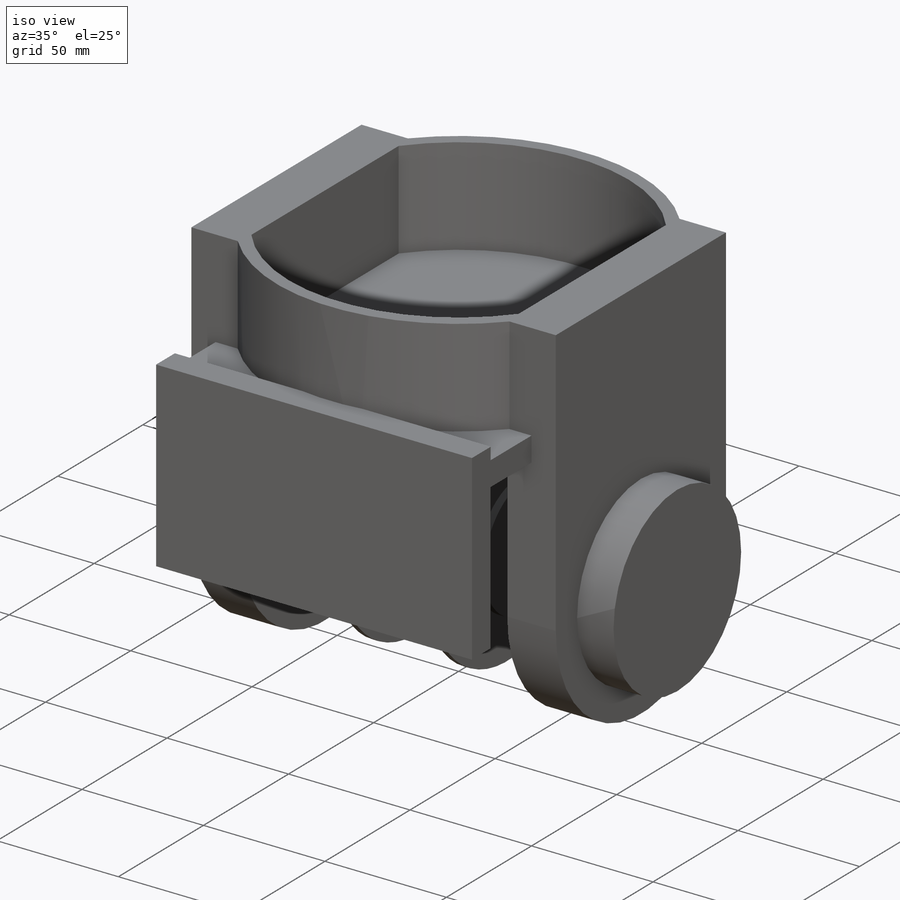
[diagram: iso view]
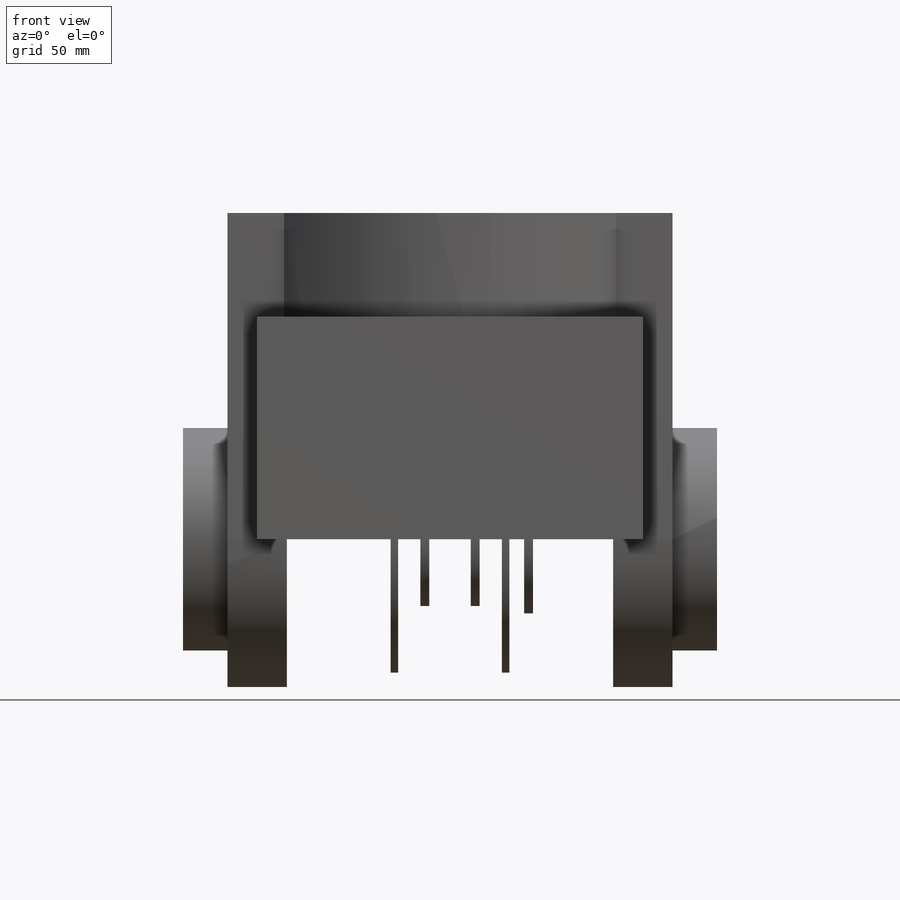
[diagram: front view]
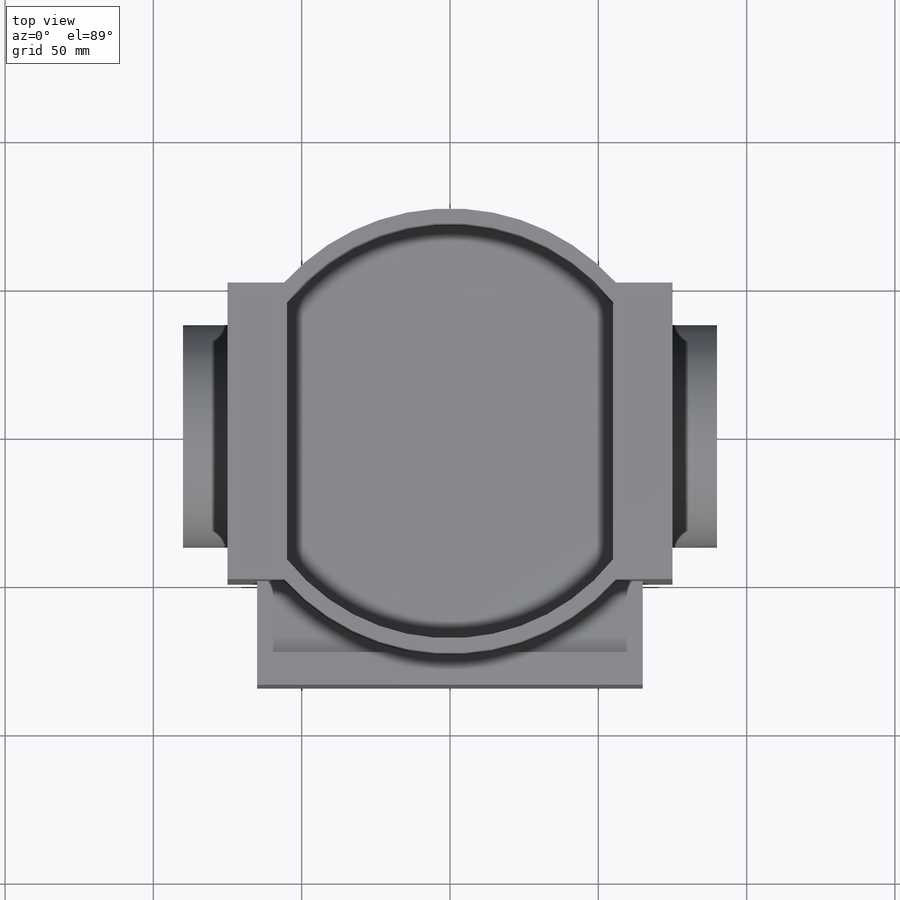
[diagram: top view]
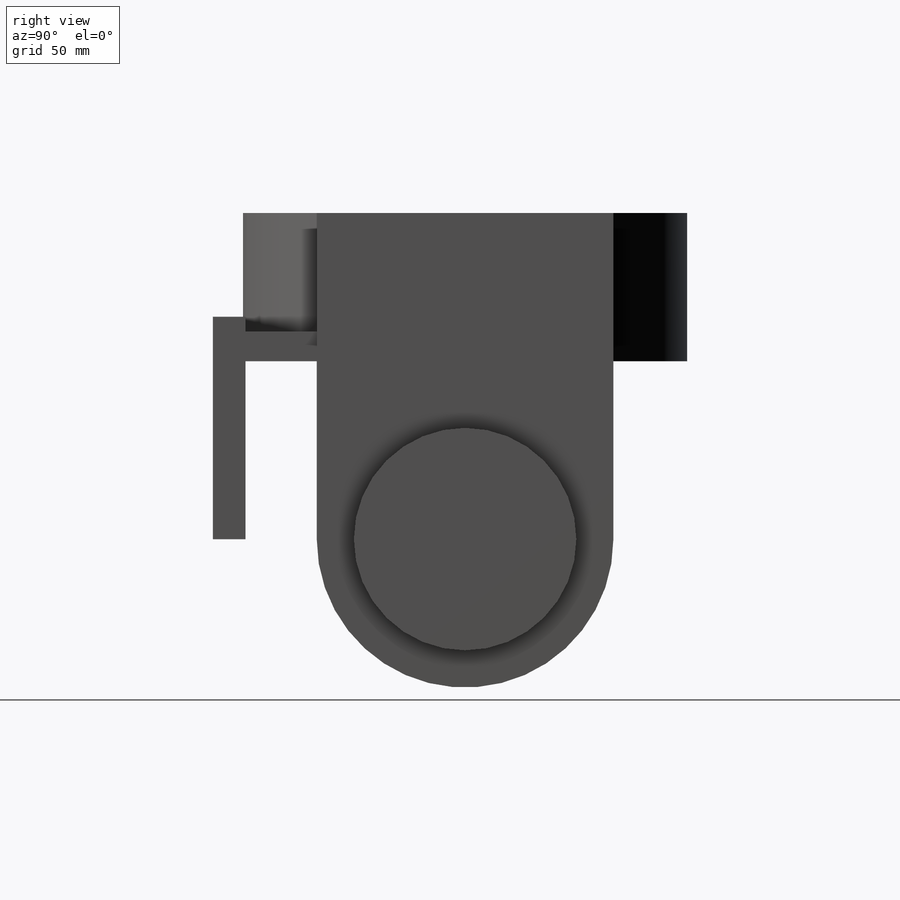
[diagram: right view]
SOLIDWORKS PART (.sldprt)
format: sldprt  version: not decoded by parser v0  size: 771,584 bytes
history: native  units: mm
features: sketch x11, extrude x11, move_body x5, cut_extrude x2, material x1 + 3 further entries (+26 scaffold rows collapsed; 12 parser-record rows omitted)
feature tree (71):
  scaffold x26  (default folders/planes/origin — collapsed)
  material  "1060 Alloy"
  sketch  "Sketch1"  dims[D1=150.0mm]
  extrude  "Boss-Extrude1"  Depth=50mm
  sketch  "Sketch4"  dims[D1=~57.191748mm]
  cut_extrude  "Cut-Extrude1"  Depth=40mm
  sketch  "Sketch5"  dims[D1=100.0mm]
  extrude  "Boss-Extrude2"  Depth=110mm
  sketch  "Sketch6"  dims[D1=~49.867962mm]
  extrude  "Boss-Extrude3"  Depth=20mm
  sketch  "Sketch7"  dims[D1=~48.597134mm]
  extrude  "Boss-Extrude4"  Depth=20mm
  sketch  "Sketch9"  dims[D1=~34.748174mm]
  extrude  "Boss-Extrude5"  Depth=15mm
  sketch  "Sketch10"  dims[D1=~36.19111mm]
  extrude  "Boss-Extrude6"  Depth=15mm
  sketch  "Sketch11"  dims[D1=90.0mm]
  sketch  "Sketch12"  dims[D1=~44.582236mm]
  sketch  "Sketch14"  dims[D1=65.0mm]
  extrude  "Boss-Extrude9"  Depth=10mm
  sketch  "Sketch16"  dims[D1=5.0mm]
  extrude  "Boss-Extrude17"  Depth=10mm
  extrude  "Boss-Extrude19"  Depth=40mm
  cut_extrude  "Cut-Extrude7"  Depth=35mm
  "gear1"
  parser-record x12  (decoder bookkeeping rows leaked as tree rows — omitted from the tree; the rows remain in map.json)
  extrude  "gear12"  [1 undecoded]
  "Axes2"
  move_body  "Body-Move/Copy1"
  move_body  "Body-Move/Copy2"
  move_body  "Concentric2"
  extrude  "gear2"  [1 undecoded]
  "Axes3"
  move_body  "Body-Move/Copy3"
  move_body  "Concentric3"
decode coverage: 22 of 29 modeling features carry decoded parameters; 3 rows unclassified (native names shown)
note: ~ marks probable driven/reference dimensions
note: 2 parameter values undecoded
note: suppression state not decoded; provenance and decode notes live in map.json
